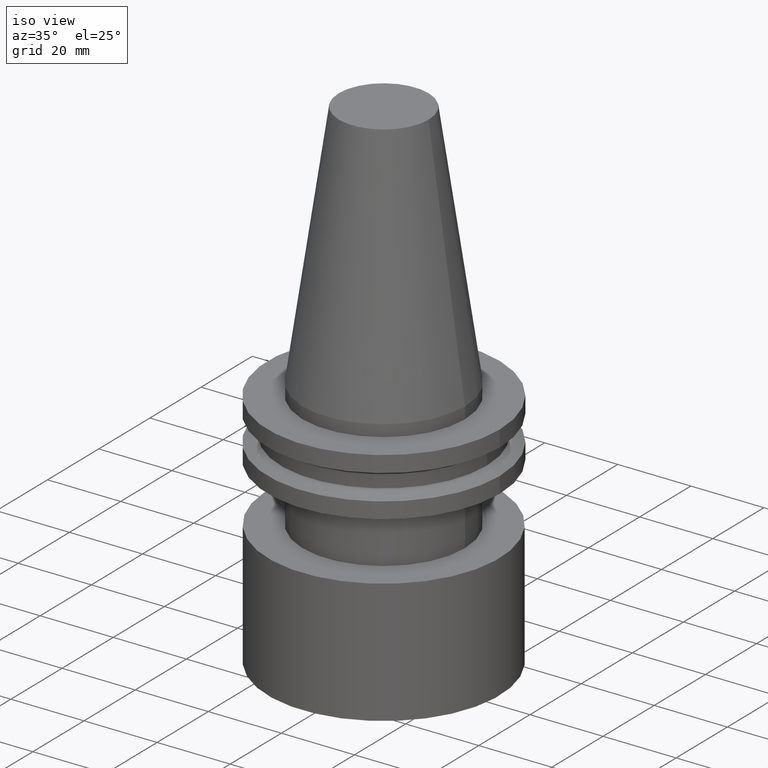
[diagram: clean part render]
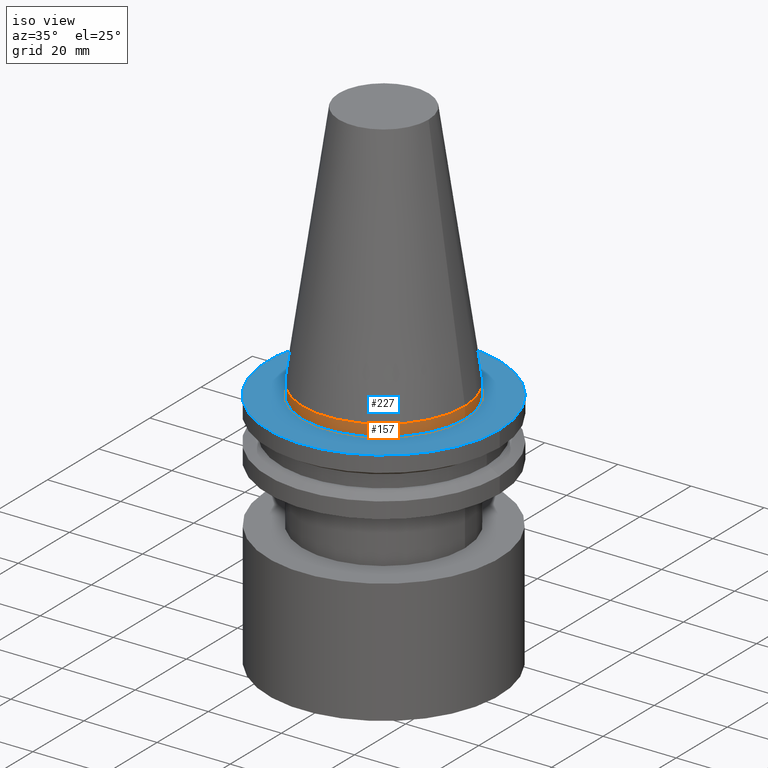
[diagram: same view with the hole feature highlighted: cylindrical wall and planar end face, labeled with their STEP entity ids]
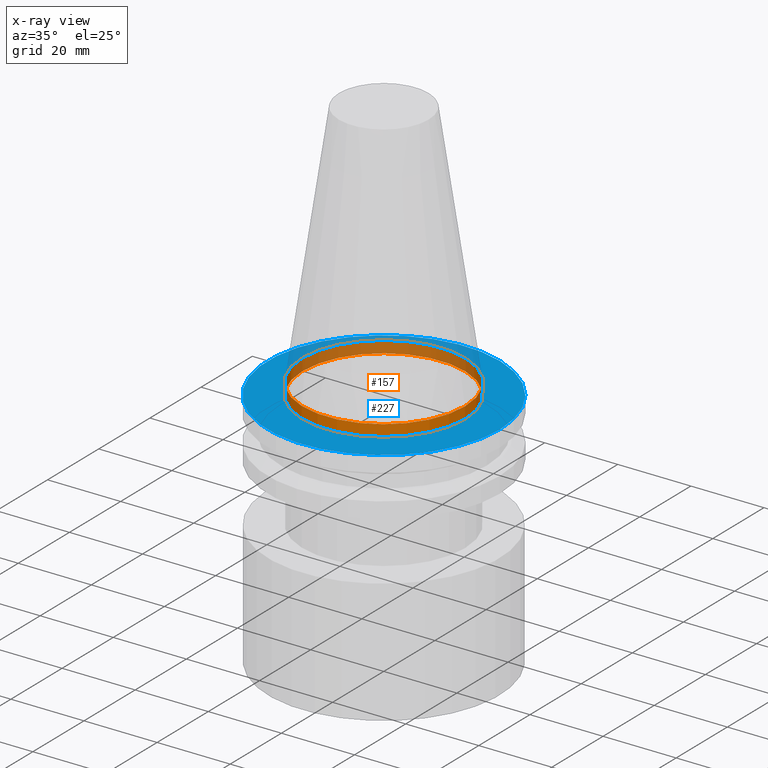
[diagram: x-ray of the same camera — body ghosted, the hole faces saturated]
A machine part, iso view. The highlighted faces form one hole feature of diameter 44.45 mm: the cylindrical wall (entity #157, orange) and its adjacent planar end face (entity #227, blue) — they share a circular edge in the B-rep.
The next image is the same camera in x-ray (body ghosted, the hole faces saturated) — the bore reads through the body.
Wall:
#1 = CARTESIAN_POINT ( 'NONE',  ( 0.000000000000000000, 0.000000000000000000, -3.174999999999997158 ) ) ;
#14 = VERTEX_POINT ( 'NONE', #273 ) ;
#16 = ORIENTED_EDGE ( 'NONE', *, *, #313, .F. ) ;
#17 = VERTEX_POINT ( 'NONE', #250 ) ;
#32 = DIRECTION ( 'NONE',  ( -0.000000000000000000, -0.000000000000000000, 1.000000000000000000 ) ) ;
#43 = DIRECTION ( 'NONE',  ( 1.000000000000000000, 0.000000000000000000, 0.000000000000000000 ) ) ;
#76 = AXIS2_PLACEMENT_3D ( 'NONE', #213, #183, #43 ) ;
#86 = CYLINDRICAL_SURFACE ( 'NONE', #229, 22.22500000000000142 ) ;
#147 = CIRCLE ( 'NONE', #258, 22.22500000000000142 ) ;
#152 = DIRECTION ( 'NONE',  ( 1.000000000000000000, 0.000000000000000000, 0.000000000000000000 ) ) ;
#157 = ADVANCED_FACE ( 'NONE', ( #174, #261 ), #86, .T. ) ;
#174 = FACE_OUTER_BOUND ( 'NONE', #305, .T. ) ;
#183 = DIRECTION ( 'NONE',  ( -0.000000000000000000, -0.000000000000000000, 1.000000000000000000 ) ) ;
#213 = CARTESIAN_POINT ( 'NONE',  ( 0.000000000000000000, 0.000000000000000000, 0.000000000000000000 ) ) ;
#229 = AXIS2_PLACEMENT_3D ( 'NONE', #230, #32, #298 ) ;
#230 = CARTESIAN_POINT ( 'NONE',  ( 0.000000000000000000, 0.000000000000000000, 68.25000000000000000 ) ) ;
#250 = CARTESIAN_POINT ( 'NONE',  ( 22.22500000000000142, 0.000000000000000000, 0.000000000000000000 ) ) ;
#258 = AXIS2_PLACEMENT_3D ( 'NONE', #1, #267, #152 ) ;
#261 = FACE_OUTER_BOUND ( 'NONE', #335, .T. ) ;
#266 = EDGE_CURVE ( 'NONE', #14, #14, #147, .T. ) ;
#267 = DIRECTION ( 'NONE',  ( -0.000000000000000000, -0.000000000000000000, 1.000000000000000000 ) ) ;
#272 = ORIENTED_EDGE ( 'NONE', *, *, #266, .T. ) ;
#273 = CARTESIAN_POINT ( 'NONE',  ( 22.22500000000000142, 0.000000000000000000, -3.174999999999997158 ) ) ;
#298 = DIRECTION ( 'NONE',  ( 1.000000000000000000, 0.000000000000000000, 0.000000000000000000 ) ) ;
#305 = EDGE_LOOP ( 'NONE', ( #16 ) ) ;
#313 = EDGE_CURVE ( 'NONE', #17, #17, #381, .T. ) ;
#335 = EDGE_LOOP ( 'NONE', ( #272 ) ) ;
#381 = CIRCLE ( 'NONE', #76, 22.22500000000000142 ) ;
End face:
#1 = CARTESIAN_POINT ( 'NONE',  ( 0.000000000000000000, 0.000000000000000000, -3.174999999999997158 ) ) ;
#7 = CARTESIAN_POINT ( 'NONE',  ( 31.75000000000000000, 0.000000000000000000, -3.174999999999997158 ) ) ;
#14 = VERTEX_POINT ( 'NONE', #273 ) ;
#20 = DIRECTION ( 'NONE',  ( -0.000000000000000000, -0.000000000000000000, 1.000000000000000000 ) ) ;
#22 = EDGE_CURVE ( 'NONE', #123, #123, #208, .T. ) ;
#25 = AXIS2_PLACEMENT_3D ( 'NONE', #75, #20, #137 ) ;
#30 = DIRECTION ( 'NONE',  ( -1.000000000000000000, 0.000000000000000000, -0.000000000000000000 ) ) ;
#75 = CARTESIAN_POINT ( 'NONE',  ( 0.000000000000000000, 0.000000000000000000, -3.174999999999997158 ) ) ;
#99 = EDGE_LOOP ( 'NONE', ( #368 ) ) ;
#113 = PLANE ( 'NONE',  #390 ) ;
#123 = VERTEX_POINT ( 'NONE', #7 ) ;
#137 = DIRECTION ( 'NONE',  ( 1.000000000000000000, 0.000000000000000000, 0.000000000000000000 ) ) ;
#147 = CIRCLE ( 'NONE', #258, 22.22500000000000142 ) ;
#152 = DIRECTION ( 'NONE',  ( 1.000000000000000000, 0.000000000000000000, 0.000000000000000000 ) ) ;
#207 = CARTESIAN_POINT ( 'NONE',  ( 0.000000000000000000, 31.75000000000000000, -3.174999999999999378 ) ) ;
#208 = CIRCLE ( 'NONE', #25, 31.75000000000000000 ) ;
#217 = ORIENTED_EDGE ( 'NONE', *, *, #22, .T. ) ;
#227 = ADVANCED_FACE ( 'NONE', ( #354, #391 ), #113, .F. ) ;
#244 = EDGE_LOOP ( 'NONE', ( #217 ) ) ;
#258 = AXIS2_PLACEMENT_3D ( 'NONE', #1, #267, #152 ) ;
#266 = EDGE_CURVE ( 'NONE', #14, #14, #147, .T. ) ;
#267 = DIRECTION ( 'NONE',  ( -0.000000000000000000, -0.000000000000000000, 1.000000000000000000 ) ) ;
#273 = CARTESIAN_POINT ( 'NONE',  ( 22.22500000000000142, 0.000000000000000000, -3.174999999999997158 ) ) ;
#325 = DIRECTION ( 'NONE',  ( 0.000000000000000000, 0.000000000000000000, -1.000000000000000000 ) ) ;
#354 = FACE_BOUND ( 'NONE', #99, .T. ) ;
#368 = ORIENTED_EDGE ( 'NONE', *, *, #266, .F. ) ;
#390 = AXIS2_PLACEMENT_3D ( 'NONE', #207, #325, #30 ) ;
#391 = FACE_OUTER_BOUND ( 'NONE', #244, .T. ) ;